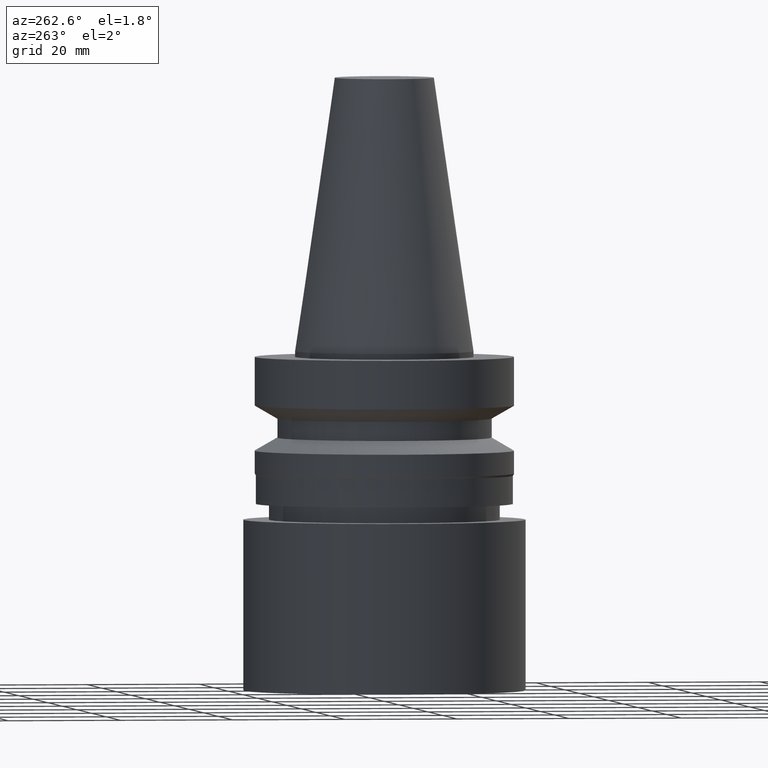
[diagram: clean part render]
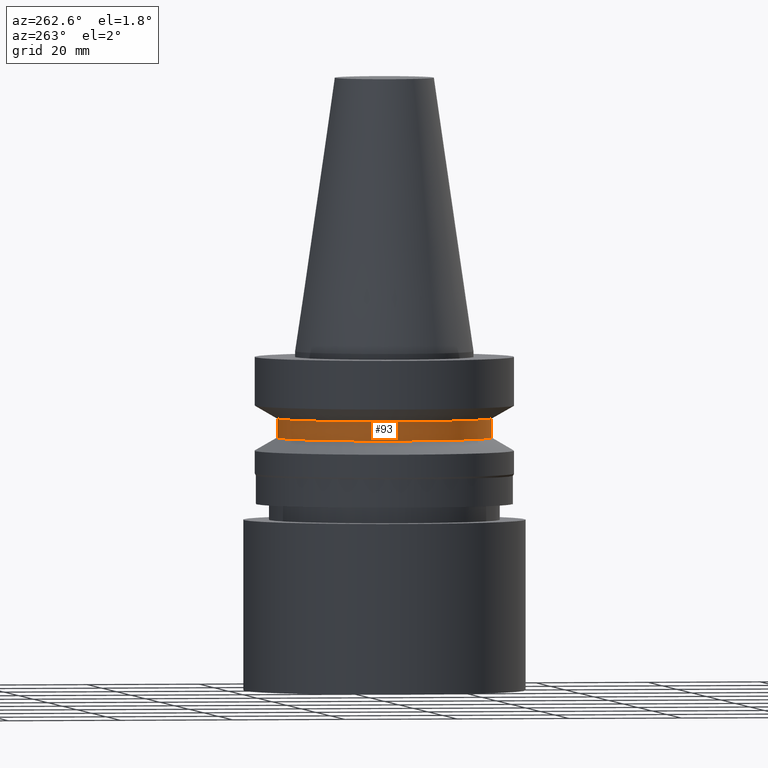
[diagram: same view with one face highlighted and labeled with its STEP entity id]
A machine part, auxiliary view. The second image highlights one B-rep face of the part: STEP entity #93.
In plain terms, the highlighted cylindrical surface (bore or boss wall) has radius 19 mm, axis along (0, 0, -1).
Its self-contained STEP definition (entity closure, byte-faithful):
#88=EDGE_CURVE('Unnamed[1]',#217,#217,#218,.T.);
#93=ADVANCED_FACE('Unnamed[1]',(#224,#225),#226,.T.);
#173=EDGE_CURVE('Unnamed[1]',#347,#347,#348,.T.);
#217=VERTEX_POINT('',#391);
#218=CIRCLE('',#392,19.0);
#224=FACE_BOUND('',#400,.T.);
#225=FACE_BOUND('',#401,.T.);
#226=CYLINDRICAL_SURFACE('',#402,19.0);
#347=VERTEX_POINT('',#552);
#348=CIRCLE('',#553,19.0);
#391=CARTESIAN_POINT('',(7.29240495619202E-016,19.0,-11.90940108));
#392=AXIS2_PLACEMENT_3D('',#581,#582,#583);
#400=EDGE_LOOP('',(#588));
#401=EDGE_LOOP('',(#589));
#402=AXIS2_PLACEMENT_3D('',#590,#591,#592);
#552=CARTESIAN_POINT('',(9.36279151221199E-016,19.0,-15.29059892));
#553=AXIS2_PLACEMENT_3D('',#724,#725,#726);
#581=CARTESIAN_POINT('',(7.29240495619202E-016,1.4584809912384E-015,-11.90940108));
#582=DIRECTION('',(6.12323399573677E-017,1.22464679914735E-016,-1.0));
#583=DIRECTION('',(-1.23259516440783E-032,1.0,1.22464679914735E-016));
#588=ORIENTED_EDGE('',*,*,#173,.F.);
#589=ORIENTED_EDGE('',*,*,#88,.T.);
#590=CARTESIAN_POINT('',(8.32759823420201E-016,1.6655196468404E-015,-13.6));
#591=DIRECTION('',(6.12323399573677E-017,1.22464679914735E-016,-1.0));
#592=DIRECTION('',(-1.23259516440783E-032,1.0,1.22464679914735E-016));
#724=CARTESIAN_POINT('',(9.36279151221199E-016,1.8725583024424E-015,-15.29059892));
#725=DIRECTION('',(6.12323399573677E-017,1.22464679914735E-016,-1.0));
#726=DIRECTION('',(-1.23259516440783E-032,1.0,1.22464679914735E-016));